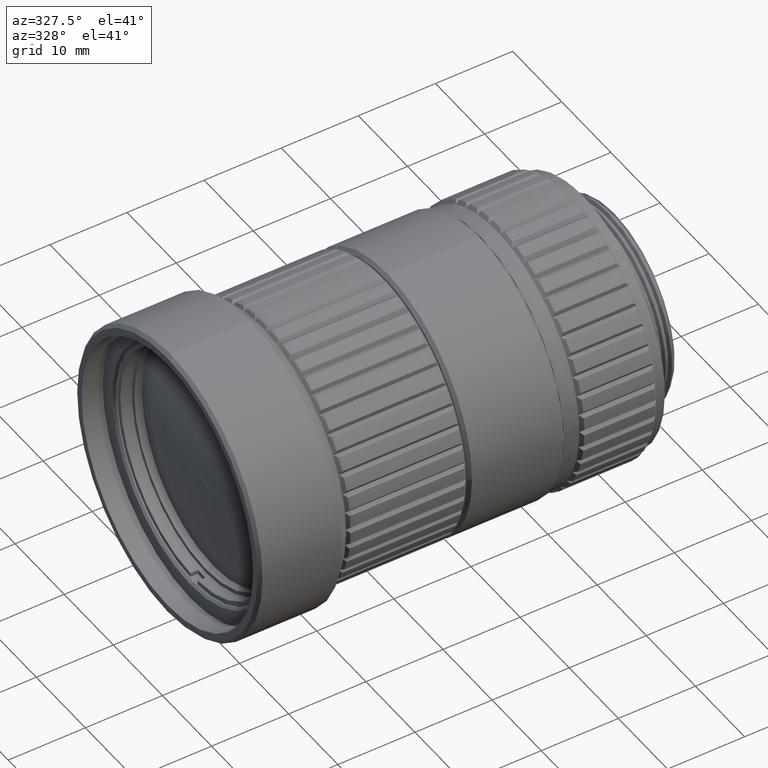
[diagram: clean part render]
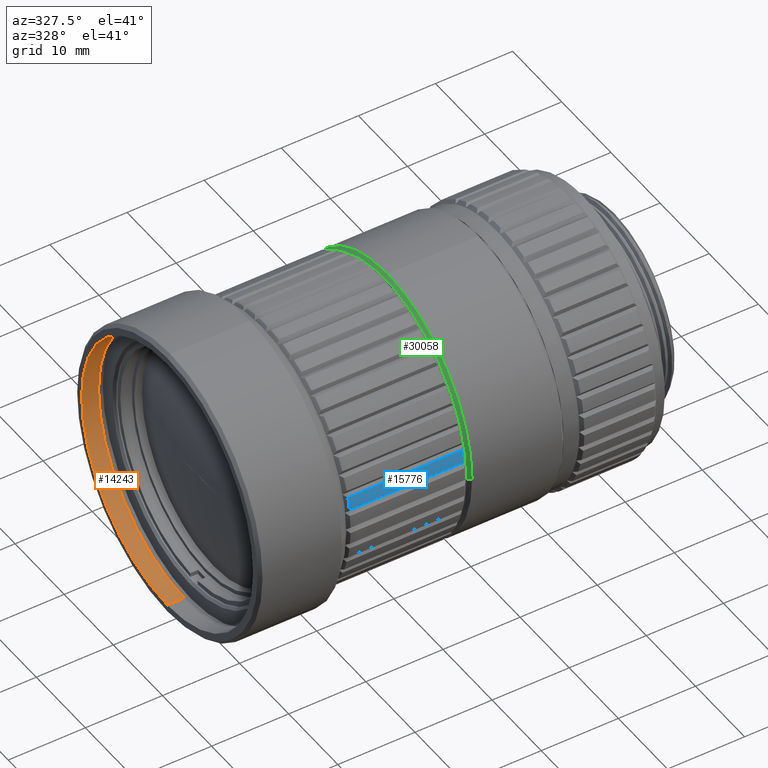
[diagram: same view with three faces highlighted in distinct colors, each labeled with its STEP entity id]
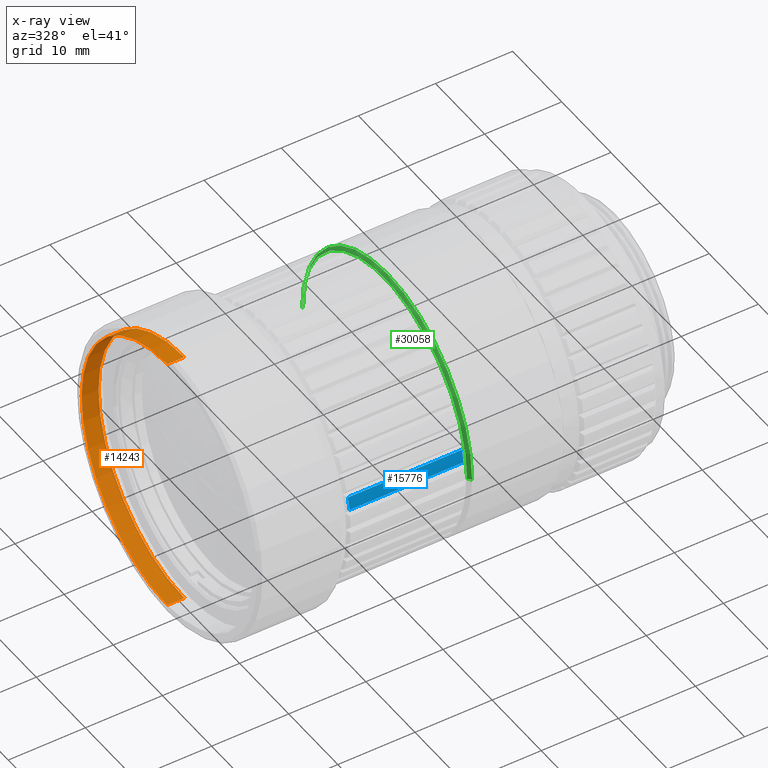
[diagram: x-ray of the same camera — body ghosted, the three highlighted faces saturated]
A machine part, auxiliary view with three faces highlighted in distinct colors.
The next image is the same camera in x-ray (body ghosted, the three faces saturated) — at least one of them is partly hidden behind the body in this view.
Their STEP definitions:

[orange] entity #14243 — the highlighted cylindrical surface (partial cylindrical patch) has radius 17.45 mm, axis along (-1, 0, 0).
#5955 = CARTESIAN_POINT ( 'NONE',  ( -3.000000000000474731, 0.000000000000000000, 17.44999999999999929 ) ) ;
#6426 = LINE ( 'NONE', #64938, #42922 ) ;
#6758 = CIRCLE ( 'NONE', #60146, 17.44999999999999929 ) ;
#8348 = CARTESIAN_POINT ( 'NONE',  ( -0.8000000000000200284, 0.000000000000000000, 0.000000000000000000 ) ) ;
#9415 = DIRECTION ( 'NONE',  ( 0.000000000000000000, 0.000000000000000000, 1.000000000000000000 ) ) ;
#10761 = DIRECTION ( 'NONE',  ( 0.000000000000000000, 0.000000000000000000, 1.000000000000000000 ) ) ;
#14243 = ADVANCED_FACE ( 'NONE', ( #35161 ), #44908, .F. ) ;
#14303 = EDGE_CURVE ( 'NONE', #51292, #61611, #58702, .T. ) ;
#17221 = DIRECTION ( 'NONE',  ( -1.000000000000000000, 0.000000000000000000, 0.000000000000000000 ) ) ;
#18445 = DIRECTION ( 'NONE',  ( 0.000000000000000000, 0.000000000000000000, 1.000000000000000000 ) ) ;
#23175 = AXIS2_PLACEMENT_3D ( 'NONE', #8348, #35839, #18445 ) ;
#25463 = VERTEX_POINT ( 'NONE', #5955 ) ;
#27618 = CARTESIAN_POINT ( 'NONE',  ( -0.8000000000000200284, 2.137008664512129597E-15, -17.44999999999999929 ) ) ;
#30507 = EDGE_CURVE ( 'NONE', #51292, #47522, #44925, .T. ) ;
#30635 = CARTESIAN_POINT ( 'NONE',  ( -0.8000000000000200284, 0.000000000000000000, 0.000000000000000000 ) ) ;
#30966 = CARTESIAN_POINT ( 'NONE',  ( -3.000000000000474731, 2.137008664512129597E-15, -17.44999999999999929 ) ) ;
#32144 = ORIENTED_EDGE ( 'NONE', *, *, #14303, .T. ) ;
#33006 = EDGE_CURVE ( 'NONE', #25463, #47522, #6758, .T. ) ;
#35161 = FACE_OUTER_BOUND ( 'NONE', #51506, .T. ) ;
#35839 = DIRECTION ( 'NONE',  ( -1.000000000000000000, 0.000000000000000000, 0.000000000000000000 ) ) ;
#41782 = DIRECTION ( 'NONE',  ( -1.000000000000000000, 0.000000000000000000, 0.000000000000000000 ) ) ;
#42439 = CARTESIAN_POINT ( 'NONE',  ( -0.8000000000000200284, 0.000000000000000000, 17.44999999999999929 ) ) ;
#42922 = VECTOR ( 'NONE', #17221, 1000.000000000000000 ) ;
#44908 = CYLINDRICAL_SURFACE ( 'NONE', #23175, 17.44999999999999929 ) ;
#44925 = LINE ( 'NONE', #55372, #60000 ) ;
#46138 = ORIENTED_EDGE ( 'NONE', *, *, #30507, .F. ) ;
#46617 = DIRECTION ( 'NONE',  ( 1.000000000000000000, 0.000000000000000000, 0.000000000000000000 ) ) ;
#47522 = VERTEX_POINT ( 'NONE', #30966 ) ;
#51292 = VERTEX_POINT ( 'NONE', #27618 ) ;
#51506 = EDGE_LOOP ( 'NONE', ( #46138, #32144, #52865, #55638 ) ) ;
#52865 = ORIENTED_EDGE ( 'NONE', *, *, #56120, .T. ) ;
#53396 = DIRECTION ( 'NONE',  ( -1.000000000000000000, 0.000000000000000000, 0.000000000000000000 ) ) ;
#55372 = CARTESIAN_POINT ( 'NONE',  ( -0.8000000000000200284, 2.137008664512129597E-15, -17.44999999999999929 ) ) ;
#55638 = ORIENTED_EDGE ( 'NONE', *, *, #33006, .T. ) ;
#56120 = EDGE_CURVE ( 'NONE', #61611, #25463, #6426, .T. ) ;
#58702 = CIRCLE ( 'NONE', #59844, 17.44999999999999929 ) ;
#59844 = AXIS2_PLACEMENT_3D ( 'NONE', #30635, #46617, #10761 ) ;
#60000 = VECTOR ( 'NONE', #53396, 1000.000000000000000 ) ;
#60146 = AXIS2_PLACEMENT_3D ( 'NONE', #68608, #41782, #9415 ) ;
#61611 = VERTEX_POINT ( 'NONE', #42439 ) ;
#64938 = CARTESIAN_POINT ( 'NONE',  ( -0.8000000000000200284, 0.000000000000000000, 17.44999999999999929 ) ) ;
#68608 = CARTESIAN_POINT ( 'NONE',  ( -3.000000000000474731, 0.000000000000000000, 0.000000000000000000 ) ) ;

[blue] entity #15776 — the highlighted cylindrical surface (partial cylindrical patch) has radius 17.2 mm, axis along (1, 0, 0).
#1353 = CARTESIAN_POINT ( 'NONE',  ( 17.19000000000000128, -16.97307192883834759, 2.784749413947435137 ) ) ;
#1598 = DIRECTION ( 'NONE',  ( 1.000000000000000000, 0.000000000000000000, 0.000000000000000000 ) ) ;
#2339 = CARTESIAN_POINT ( 'NONE',  ( 24.58999999999809916, -16.63833239126750030, 4.359575121242454721 ) ) ;
#4613 = EDGE_CURVE ( 'NONE', #51066, #54380, #65598, .T. ) ;
#5424 = CARTESIAN_POINT ( 'NONE',  ( 9.790000000000000924, 0.000000000000000000, 0.000000000000000000 ) ) ;
#6477 = CYLINDRICAL_SURFACE ( 'NONE', #13228, 17.19999999999999929 ) ;
#7244 = EDGE_CURVE ( 'NONE', #54380, #44959, #55315, .T. ) ;
#11036 = DIRECTION ( 'NONE',  ( 0.000000000000000000, 0.000000000000000000, -1.000000000000000000 ) ) ;
#13198 = CARTESIAN_POINT ( 'NONE',  ( 24.58999999999869956, -16.97307192883984683, 2.784749413944620056 ) ) ;
#13228 = AXIS2_PLACEMENT_3D ( 'NONE', #44080, #1598, #11036 ) ;
#15776 = ADVANCED_FACE ( 'NONE', ( #54179 ), #6477, .T. ) ;
#16612 = DIRECTION ( 'NONE',  ( 0.000000000000000000, -1.000000000000000000, 0.000000000000000000 ) ) ;
#17576 = ORIENTED_EDGE ( 'NONE', *, *, #32919, .T. ) ;
#17806 = DIRECTION ( 'NONE',  ( -1.000000000000000000, 0.000000000000000000, 0.000000000000000000 ) ) ;
#21853 = DIRECTION ( 'NONE',  ( 1.000000000000000000, 0.000000000000000000, 0.000000000000000000 ) ) ;
#22616 = DIRECTION ( 'NONE',  ( -1.000000000000000000, 0.000000000000000000, 0.000000000000000000 ) ) ;
#31112 = ORIENTED_EDGE ( 'NONE', *, *, #4613, .F. ) ;
#32919 = EDGE_CURVE ( 'NONE', #51066, #63288, #45636, .T. ) ;
#36860 = CARTESIAN_POINT ( 'NONE',  ( 9.790000000002130776, -16.63833239126759977, 4.359575121242399653 ) ) ;
#38681 = EDGE_CURVE ( 'NONE', #44959, #63288, #42743, .T. ) ;
#39133 = CARTESIAN_POINT ( 'NONE',  ( 9.790000000002359926, -16.97307192883924643, 2.784749413943800267 ) ) ;
#42359 = VECTOR ( 'NONE', #17806, 1000.000000000000000 ) ;
#42743 = CIRCLE ( 'NONE', #47198, 17.19999999999999929 ) ;
#42745 = CARTESIAN_POINT ( 'NONE',  ( 24.58999999999954866, 0.000000000000000000, 0.000000000000000000 ) ) ;
#44080 = CARTESIAN_POINT ( 'NONE',  ( 9.790000000000000924, 0.000000000000000000, 0.000000000000000000 ) ) ;
#44959 = VERTEX_POINT ( 'NONE', #39133 ) ;
#45636 = LINE ( 'NONE', #50509, #42359 ) ;
#47198 = AXIS2_PLACEMENT_3D ( 'NONE', #5424, #59741, #47911 ) ;
#47911 = DIRECTION ( 'NONE',  ( 0.000000000000000000, -1.000000000000000000, 0.000000000000000000 ) ) ;
#48927 = AXIS2_PLACEMENT_3D ( 'NONE', #42745, #21853, #16612 ) ;
#50509 = CARTESIAN_POINT ( 'NONE',  ( 17.19000000000000128, -16.63833239126945074, 4.359575121241354267 ) ) ;
#50942 = ORIENTED_EDGE ( 'NONE', *, *, #38681, .F. ) ;
#51066 = VERTEX_POINT ( 'NONE', #2339 ) ;
#52959 = ORIENTED_EDGE ( 'NONE', *, *, #7244, .F. ) ;
#54179 = FACE_OUTER_BOUND ( 'NONE', #67989, .T. ) ;
#54380 = VERTEX_POINT ( 'NONE', #13198 ) ;
#55315 = LINE ( 'NONE', #1353, #57960 ) ;
#57960 = VECTOR ( 'NONE', #22616, 1000.000000000000000 ) ;
#59741 = DIRECTION ( 'NONE',  ( -1.000000000000000000, 0.000000000000000000, 0.000000000000000000 ) ) ;
#63288 = VERTEX_POINT ( 'NONE', #36860 ) ;
#65598 = CIRCLE ( 'NONE', #48927, 17.19999999999999929 ) ;
#67989 = EDGE_LOOP ( 'NONE', ( #31112, #17576, #50942, #52959 ) ) ;

[green] entity #30058 — the highlighted conical surface has half-angle 45 deg.
#339 = CARTESIAN_POINT ( 'NONE',  ( 25.55899999999680006, 17.19999999999999929, 1.040834223167869875E-13 ) ) ;
#2364 = AXIS2_PLACEMENT_3D ( 'NONE', #5623, #38618, #28192 ) ;
#3917 = ORIENTED_EDGE ( 'NONE', *, *, #54201, .F. ) ;
#4366 = VERTEX_POINT ( 'NONE', #339 ) ;
#5623 = CARTESIAN_POINT ( 'NONE',  ( 25.55899999999680006, 0.000000000000000000, 0.000000000000000000 ) ) ;
#5713 = CARTESIAN_POINT ( 'NONE',  ( 25.55899999999680006, -17.19999999999999929, 1.061898148113199979E-13 ) ) ;
#7209 = EDGE_CURVE ( 'NONE', #16599, #10934, #14579, .T. ) ;
#7774 = CIRCLE ( 'NONE', #34481, 16.79999777931464777 ) ;
#10197 = ORIENTED_EDGE ( 'NONE', *, *, #61237, .T. ) ;
#10934 = VERTEX_POINT ( 'NONE', #22635 ) ;
#14579 = CIRCLE ( 'NONE', #2364, 17.19999999999999929 ) ;
#15659 = CARTESIAN_POINT ( 'NONE',  ( 25.15900111023955077, 16.79999888955404685, 1.040834085586083878E-13 ) ) ;
#16599 = VERTEX_POINT ( 'NONE', #5713 ) ;
#16815 = EDGE_LOOP ( 'NONE', ( #29210, #10197, #60142, #42952, #3917 ) ) ;
#17879 = VERTEX_POINT ( 'NONE', #64493 ) ;
#19580 = VERTEX_POINT ( 'NONE', #51352 ) ;
#21043 = DIRECTION ( 'NONE',  ( -1.000000000000000000, 0.000000000000000000, 0.000000000000000000 ) ) ;
#22635 = CARTESIAN_POINT ( 'NONE',  ( 25.55899999999680006, 2.106392494533449755E-15, 17.19999999999999929 ) ) ;
#23283 = DIRECTION ( 'NONE',  ( -1.000000000000000000, 0.000000000000000000, 0.000000000000000000 ) ) ;
#23625 = CARTESIAN_POINT ( 'NONE',  ( 25.55899999999680006, 0.000000000000000000, 0.000000000000000000 ) ) ;
#28192 = DIRECTION ( 'NONE',  ( 0.000000000000000000, -1.000000000000000000, 6.217248937900880571E-15 ) ) ;
#29210 = ORIENTED_EDGE ( 'NONE', *, *, #65033, .F. ) ;
#29904 = VECTOR ( 'NONE', #53725, 1000.000000000000114 ) ;
#30058 = ADVANCED_FACE ( 'NONE', ( #55966 ), #49942, .T. ) ;
#30215 = DIRECTION ( 'NONE',  ( -2.065147131712524842E-16, 1.000000000000000000, 0.000000000000000000 ) ) ;
#33041 = DIRECTION ( 'NONE',  ( 0.000000000000000000, -1.000000000000000000, 0.000000000000000000 ) ) ;
#34481 = AXIS2_PLACEMENT_3D ( 'NONE', #63873, #21043, #42968 ) ;
#36002 = LINE ( 'NONE', #48162, #29904 ) ;
#36551 = DIRECTION ( 'NONE',  ( 0.7071068279252180622, 0.7071067344478738637, -1.507846152444899730E-32 ) ) ;
#36554 = CIRCLE ( 'NONE', #44363, 17.19999999999999929 ) ;
#37583 = LINE ( 'NONE', #15659, #40691 ) ;
#38618 = DIRECTION ( 'NONE',  ( -1.000000000000000000, 0.000000000000000000, 0.000000000000000000 ) ) ;
#40691 = VECTOR ( 'NONE', #36551, 1000.000000000000114 ) ;
#42952 = ORIENTED_EDGE ( 'NONE', *, *, #47671, .T. ) ;
#42968 = DIRECTION ( 'NONE',  ( 0.000000000000000000, 0.000000000000000000, 1.000000000000000000 ) ) ;
#44363 = AXIS2_PLACEMENT_3D ( 'NONE', #23625, #23283, #33041 ) ;
#45174 = DIRECTION ( 'NONE',  ( 1.000000000000000000, 2.065147131712519665E-16, -2.132416337810229911E-32 ) ) ;
#47671 = EDGE_CURVE ( 'NONE', #10934, #4366, #36554, .T. ) ;
#48162 = CARTESIAN_POINT ( 'NONE',  ( 25.15900111023960406, -16.79999888955410015, 1.061408150451855877E-13 ) ) ;
#48859 = AXIS2_PLACEMENT_3D ( 'NONE', #67129, #45174, #30215 ) ;
#49942 = CONICAL_SURFACE ( 'NONE', #48859, 16.79999888955404685, 0.7853980972989844656 ) ;
#51352 = CARTESIAN_POINT ( 'NONE',  ( 25.15900000000000247, 16.79999777931459803, 1.040834085586083878E-13 ) ) ;
#53725 = DIRECTION ( 'NONE',  ( 0.7071068279252180622, -0.7071067344478738637, 8.659559989971267561E-17 ) ) ;
#54201 = EDGE_CURVE ( 'NONE', #19580, #4366, #37583, .T. ) ;
#55966 = FACE_OUTER_BOUND ( 'NONE', #16815, .T. ) ;
#60142 = ORIENTED_EDGE ( 'NONE', *, *, #7209, .T. ) ;
#61237 = EDGE_CURVE ( 'NONE', #17879, #16599, #36002, .T. ) ;
#63873 = CARTESIAN_POINT ( 'NONE',  ( 25.15900000000000247, -4.396483177515999815E-14, 1.058181315759793930E-13 ) ) ;
#64493 = CARTESIAN_POINT ( 'NONE',  ( 25.15900000000000247, -16.79999777931469751, 1.061653078419652003E-13 ) ) ;
#65033 = EDGE_CURVE ( 'NONE', #17879, #19580, #7774, .T. ) ;
#67129 = CARTESIAN_POINT ( 'NONE',  ( 25.15900111023955077, -4.396483177515999815E-14, 1.040834085586083878E-13 ) ) ;